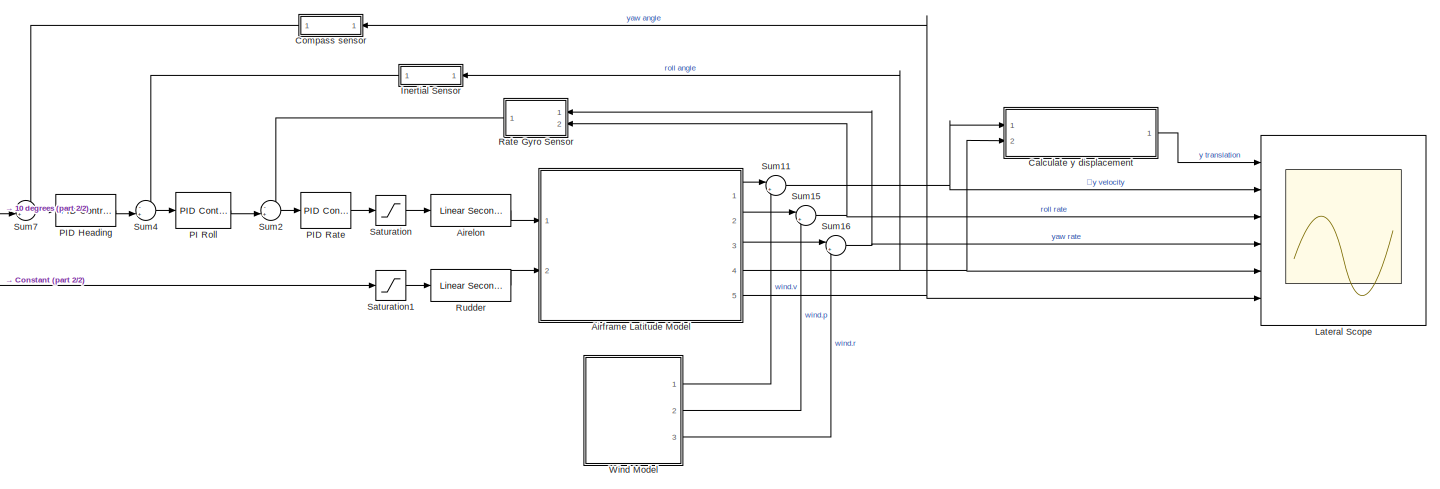
[diagram: root canvas - part 1/2, most of the canvas]
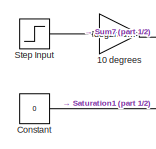
[diagram: root canvas - part 2/2, middle left region]
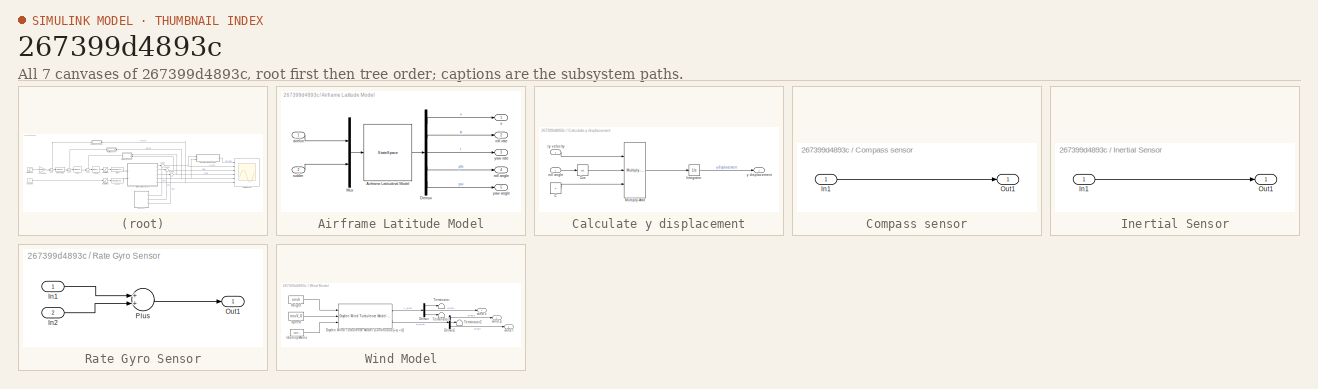
[diagram: thumbnail index - all 7 canvases of the model, root first then tree order]
MODEL slx_267399d4893c
KIND model
CONFIG AbsTol = auto
CONFIG EnableMultiTasking = off
CONFIG FixedStep = 1e-4
CONFIG MaxStep = auto
CONFIG MinStep = auto
CONFIG RelTol = 1e-5
CONFIG SampleTimeConstraint = Unconstrained
CONFIG Solver = VariableStepAuto
CONFIG SolverName = VariableStepAuto
CONFIG StartTime = 0.0
CONFIG StopTime = 100
BLOCK [Gain] 10 degrees
  Gain = deg2rad(10)
  OutDataTypeStr = Inherit: Inherit via internal rule
  ParamDataTypeStr = Inherit: Inherit via internal rule
  SaturateOnIntegerOverflow = off
BLOCK [Reference] Airelon  REF=aerolibactuator/Linear Second-Order Actuator
  Ports = [1, 1]
  SourceBlock = aerolibactuator/Linear Second-Order Actuator
  SourceProductBaseCode = AE
  SourceProductName = Aerospace Blockset
  SourceType = LinearSecondOrderActuator
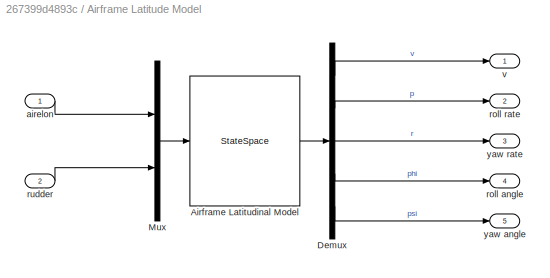
BLOCK [SubSystem] Airframe Latitude Model
  Ports = [2, 5]
  RequestExecContextInheritance = off
BLOCK [StateSpace] Airframe Latitude Model/Airframe Latitudinal Model
  A = sys.lat.A
  B = sys.lat.B
  C = sys.lat.C
  D = sys.lat.D
  InitialCondition = 0
  Ports = [1, 1]
BLOCK [Demux] Airframe Latitude Model/Demux
  DisplayOption = bar
  Outputs = 5
  Ports = [1, 5]
BLOCK [Mux] Airframe Latitude Model/Mux
  DisplayOption = bar
  Inputs = 2
  Ports = [2, 1]
BLOCK [Inport] Airframe Latitude Model/airelon
  IconDisplay = Port number
BLOCK [Outport] Airframe Latitude Model/roll angle
  IconDisplay = Port number
  Port = 4
BLOCK [Outport] Airframe Latitude Model/roll rate
  IconDisplay = Port number
  Port = 2
BLOCK [Inport] Airframe Latitude Model/rudder
  IconDisplay = Port number
  Port = 2
BLOCK [Outport] Airframe Latitude Model/v
  IconDisplay = Port number
BLOCK [Outport] Airframe Latitude Model/yaw angle
  IconDisplay = Port number
  Port = 5
BLOCK [Outport] Airframe Latitude Model/yaw rate
  IconDisplay = Port number
  Port = 3
BLOCK [SubSystem] Calculate y displacement
  Ports = [2, 1]
  RequestExecContextInheritance = off
BLOCK [Constant] Calculate y displacement/C
  Value = 0
BLOCK [Trigonometry] Calculate y displacement/Cos
  Operator = cos
  Ports = [1, 1]
BLOCK [Integrator] Calculate y displacement/Integrator
  Ports = [1, 1]
BLOCK [Reference] Calculate y displacement/Multiply-Add  REF=hdlsllib/HDL Operations/Multiply-Add
  Ports = [3, 1]
  SourceBlock = hdlsllib/HDL Operations/Multiply-Add
  SourceProductBaseCode = SL
  SourceProductName = Simulink
  SourceType = Multiply-Add
BLOCK [Inport] Calculate y displacement/roll angle
  IconDisplay = Port number
  Port = 2
BLOCK [Outport] Calculate y displacement/y displacement
  IconDisplay = Port number
BLOCK [Inport] Calculate y displacement/𝚫y velocity
  IconDisplay = Port number
BLOCK [SubSystem] Compass sensor
  Ports = [1, 1]
  RequestExecContextInheritance = off
  ShowPortLabels = none
BLOCK [Inport] Compass sensor/In1
  IconDisplay = Port number
BLOCK [Outport] Compass sensor/Out1
  IconDisplay = Port number
BLOCK [Constant] Constant
  Value = 0
BLOCK [SubSystem] Inertial Sensor
  Ports = [1, 1]
  RequestExecContextInheritance = off
  ShowPortLabels = none
BLOCK [Inport] Inertial Sensor/In1
  IconDisplay = Port number
BLOCK [Outport] Inertial Sensor/Out1
  IconDisplay = Port number
BLOCK [Scope] Lateral Scope
  Floating = off
  NumInputPorts = 6
  Ports = [6]
  ScopeSpecificationString = Simulink.scopes.TimeScopeBlockCfg('CurrentConfiguration', extmgr.ConfigurationSet(extmgr.Configuration('Core','General UI',true,'FigureColor',[1 1 1]),extmgr.Configuration('Core','Source UI',true),extmgr.Configuration('Sources','WiredSimulink',true,'DataLoggingVariableName','ScopeData2'),extmgr.Configuration('Visuals','Time Domain',true,'SerializedDisplays',{struct('MinYLimReal','-0.13986','MaxYLi...<+6732ch>
BLOCK [Reference] PI  Roll  REF=simulink/Continuous/PID Controller
  Ports = [1, 1]
  SourceBlock = simulink/Continuous/PID Controller
  SourceProductBaseCode = SL
  SourceProductName = Simulink
  SourceType = PID 1dof
BLOCK [Reference] PID Heading  REF=simulink/Continuous/PID Controller
  Ports = [1, 1]
  SourceBlock = simulink/Continuous/PID Controller
  SourceProductBaseCode = SL
  SourceProductName = Simulink
  SourceType = PID 1dof
BLOCK [Reference] PID Rate  REF=simulink/Continuous/PID Controller
  Ports = [1, 1]
  SourceBlock = simulink/Continuous/PID Controller
  SourceProductBaseCode = SL
  SourceProductName = Simulink
  SourceType = PID 1dof
BLOCK [SubSystem] Rate Gyro Sensor
  Ports = [2, 1]
  RequestExecContextInheritance = off
  ShowPortLabels = none
BLOCK [Inport] Rate Gyro Sensor/In1
  IconDisplay = Port number
BLOCK [Inport] Rate Gyro Sensor/In2
  IconDisplay = Port number
  Port = 2
BLOCK [Outport] Rate Gyro Sensor/Out1
  IconDisplay = Port number
BLOCK [Sum] Rate Gyro Sensor/Plus
  InputSameDT = off
  OutDataTypeStr = Inherit: Inherit via internal rule
  Ports = [2, 1]
  SaturateOnIntegerOverflow = off
BLOCK [Reference] Rudder  REF=aerolibactuator/Linear Second-Order Actuator
  Ports = [1, 1]
  SourceBlock = aerolibactuator/Linear Second-Order Actuator
  SourceProductBaseCode = AE
  SourceProductName = Aerospace Blockset
  SourceType = LinearSecondOrderActuator
BLOCK [Saturate] Saturation
  InputPortMap = u0
  LinearizeAsGain = off
  LowerLimit = geometry.airelon.limits(2)
  Ports = [1, 1]
  UpperLimit = geometry.airelon.limits(1)
BLOCK [Saturate] Saturation1
  InputPortMap = u0
  LinearizeAsGain = off
  LowerLimit = geometry.rudder.limits(2)
  Ports = [1, 1]
  UpperLimit = geometry.rudder.limits(1)
BLOCK [Step] Step Input
BLOCK [Sum] Sum11
  IconShape = round
  InputSameDT = off
  Inputs = |++
  OutDataTypeStr = Inherit: Inherit via internal rule
  Ports = [2, 1]
  SaturateOnIntegerOverflow = off
BLOCK [Sum] Sum15
  IconShape = round
  InputSameDT = off
  Inputs = |++
  OutDataTypeStr = Inherit: Inherit via internal rule
  Ports = [2, 1]
  SaturateOnIntegerOverflow = off
BLOCK [Sum] Sum16
  IconShape = round
  InputSameDT = off
  Inputs = |++
  OutDataTypeStr = Inherit: Inherit via internal rule
  Ports = [2, 1]
  SaturateOnIntegerOverflow = off
BLOCK [Sum] Sum2
  IconShape = round
  InputSameDT = off
  Inputs = -+|
  OutDataTypeStr = Inherit: Inherit via internal rule
  Ports = [2, 1]
  SaturateOnIntegerOverflow = off
BLOCK [Sum] Sum4
  IconShape = round
  InputSameDT = off
  Inputs = -+|
  OutDataTypeStr = Inherit: Inherit via internal rule
  Ports = [2, 1]
  SaturateOnIntegerOverflow = off
BLOCK [Sum] Sum7
  IconShape = round
  InputSameDT = off
  Inputs = -+|
  OutDataTypeStr = Inherit: Inherit via internal rule
  Ports = [2, 1]
  SaturateOnIntegerOverflow = off
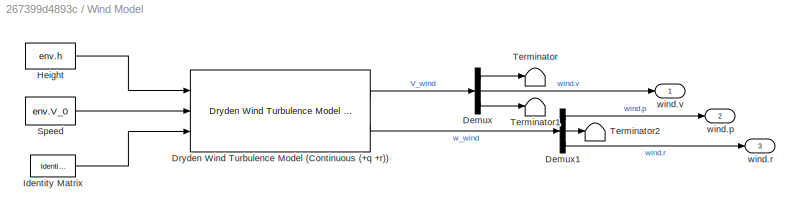
BLOCK [SubSystem] Wind Model
  Ports = [0, 3]
  RequestExecContextInheritance = off
BLOCK [Demux] Wind Model/Demux
  DisplayOption = bar
  Outputs = 3
  Ports = [1, 3]
BLOCK [Demux] Wind Model/Demux1
  DisplayOption = bar
  Outputs = 3
  Ports = [1, 3]
BLOCK [Reference] Wind Model/Dryden Wind Turbulence Model (Continuous (+q +r))  REF=aerolibwind2/Dryden Wind Turbulence Model 
(Continuous (+q -r))
  Ports = [3, 2]
  SourceBlock = aerolibwind2/Dryden Wind Turbulence Model \n(Continuous (+q -r))
  SourceProductBaseCode = AE
  SourceProductName = Aerospace Blockset
  SourceType = Wind Turbulence Model
BLOCK [Constant] Wind Model/Height
  Value = env.h
BLOCK [Reference] Wind Model/Identity Matrix  REF=dspmtrx3/Identity Matrix
  Ports = [0, 1]
  SourceBlock = dspmtrx3/Identity Matrix
  SourceProductBaseCode = DS
  SourceProductName = DSP System Toolbox
  SourceType = Identity Matrix
BLOCK [Constant] Wind Model/Speed
  Value = env.V_0
BLOCK [Terminator] Wind Model/Terminator
BLOCK [Terminator] Wind Model/Terminator1
BLOCK [Terminator] Wind Model/Terminator2
BLOCK [Outport] Wind Model/wind.p
  IconDisplay = Port number
  Port = 2
BLOCK [Outport] Wind Model/wind.r
  IconDisplay = Port number
  Port = 3
BLOCK [Outport] Wind Model/wind.v
  IconDisplay = Port number
LINE 10 degrees:1 -> Sum7:2
LINE Airelon:1 -> Airframe Latitude Model:1
LINE Airframe Latitude Model/Airframe Latitudinal Model:1 -> Airframe Latitude Model/Demux:1
LINE Airframe Latitude Model/Demux:1 -> Airframe Latitude Model/v:1
LINE Airframe Latitude Model/Demux:2 -> Airframe Latitude Model/roll rate:1
LINE Airframe Latitude Model/Demux:3 -> Airframe Latitude Model/yaw rate:1
LINE Airframe Latitude Model/Demux:4 -> Airframe Latitude Model/roll angle:1
LINE Airframe Latitude Model/Demux:5 -> Airframe Latitude Model/yaw angle:1
LINE Airframe Latitude Model/Mux:1 -> Airframe Latitude Model/Airframe Latitudinal Model:1
LINE Airframe Latitude Model/airelon:1 -> Airframe Latitude Model/Mux:1
LINE Airframe Latitude Model/rudder:1 -> Airframe Latitude Model/Mux:2
LINE Airframe Latitude Model:1 -> Sum11:1
LINE Airframe Latitude Model:2 -> Sum15:1
LINE Airframe Latitude Model:3 -> Sum16:1
NET Airframe Latitude Model:4 -> Calculate y displacement:2, Inertial Sensor:1, Lateral Scope:5
NET Airframe Latitude Model:5 -> Compass sensor:1, Lateral Scope:6
LINE Calculate y displacement/C:1 -> Calculate y displacement/Multiply-Add:3
LINE Calculate y displacement/Cos:1 -> Calculate y displacement/Multiply-Add:2
LINE Calculate y displacement/Integrator:1 -> Calculate y displacement/y displacement:1
LINE Calculate y displacement/Multiply-Add:1 -> Calculate y displacement/Integrator:1
LINE Calculate y displacement/roll angle:1 -> Calculate y displacement/Cos:1
LINE Calculate y displacement/𝚫y velocity:1 -> Calculate y displacement/Multiply-Add:1
LINE Calculate y displacement:1 -> Lateral Scope:1
LINE Compass sensor/In1:1 -> Compass sensor/Out1:1
LINE Compass sensor:1 -> Sum7:1
LINE Constant:1 -> Saturation1:1
LINE Inertial Sensor/In1:1 -> Inertial Sensor/Out1:1
LINE Inertial Sensor:1 -> Sum4:1
LINE PI  Roll:1 -> Sum2:2
LINE PID Heading:1 -> Sum4:2
LINE PID Rate:1 -> Saturation:1
LINE Rate Gyro Sensor/In1:1 -> Rate Gyro Sensor/Plus:1
LINE Rate Gyro Sensor/In2:1 -> Rate Gyro Sensor/Plus:2
LINE Rate Gyro Sensor/Plus:1 -> Rate Gyro Sensor/Out1:1
LINE Rate Gyro Sensor:1 -> Sum2:1
LINE Rudder:1 -> Airframe Latitude Model:2
LINE Saturation1:1 -> Rudder:1
LINE Saturation:1 -> Airelon:1
LINE Step Input:1 -> 10 degrees:1
NET Sum11:1 -> Calculate y displacement:1, Lateral Scope:2
NET Sum15:1 -> Lateral Scope:3, Rate Gyro Sensor:2
NET Sum16:1 -> Lateral Scope:4, Rate Gyro Sensor:1
LINE Sum2:1 -> PID Rate:1
LINE Sum4:1 -> PI  Roll:1
LINE Sum7:1 -> PID Heading:1
LINE Wind Model/Demux1:1 -> Wind Model/wind.p:1
LINE Wind Model/Demux1:2 -> Wind Model/Terminator2:1
LINE Wind Model/Demux1:3 -> Wind Model/wind.r:1
LINE Wind Model/Demux:1 -> Wind Model/Terminator:1
LINE Wind Model/Demux:2 -> Wind Model/wind.v:1
LINE Wind Model/Demux:3 -> Wind Model/Terminator1:1
LINE Wind Model/Dryden Wind Turbulence Model (Continuous (+q +r)):1 -> Wind Model/Demux:1
LINE Wind Model/Dryden Wind Turbulence Model (Continuous (+q +r)):2 -> Wind Model/Demux1:1
LINE Wind Model/Height:1 -> Wind Model/Dryden Wind Turbulence Model (Continuous (+q +r)):1
LINE Wind Model/Identity Matrix:1 -> Wind Model/Dryden Wind Turbulence Model (Continuous (+q +r)):3
LINE Wind Model/Speed:1 -> Wind Model/Dryden Wind Turbulence Model (Continuous (+q +r)):2
LINE Wind Model:1 -> Sum11:2
LINE Wind Model:2 -> Sum15:2
LINE Wind Model:3 -> Sum16:2
note: NET lines group one-source signal fan-out (src -> all destinations, sorted); 1:1 wires keep LINE
